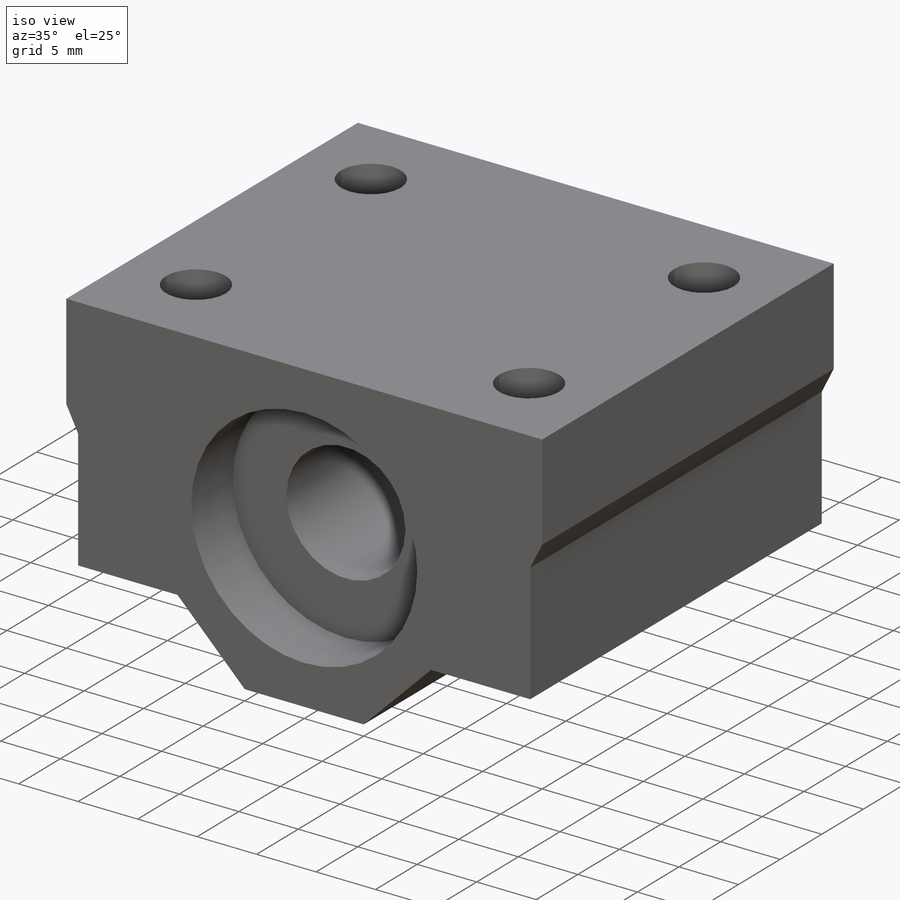
[diagram: iso view]
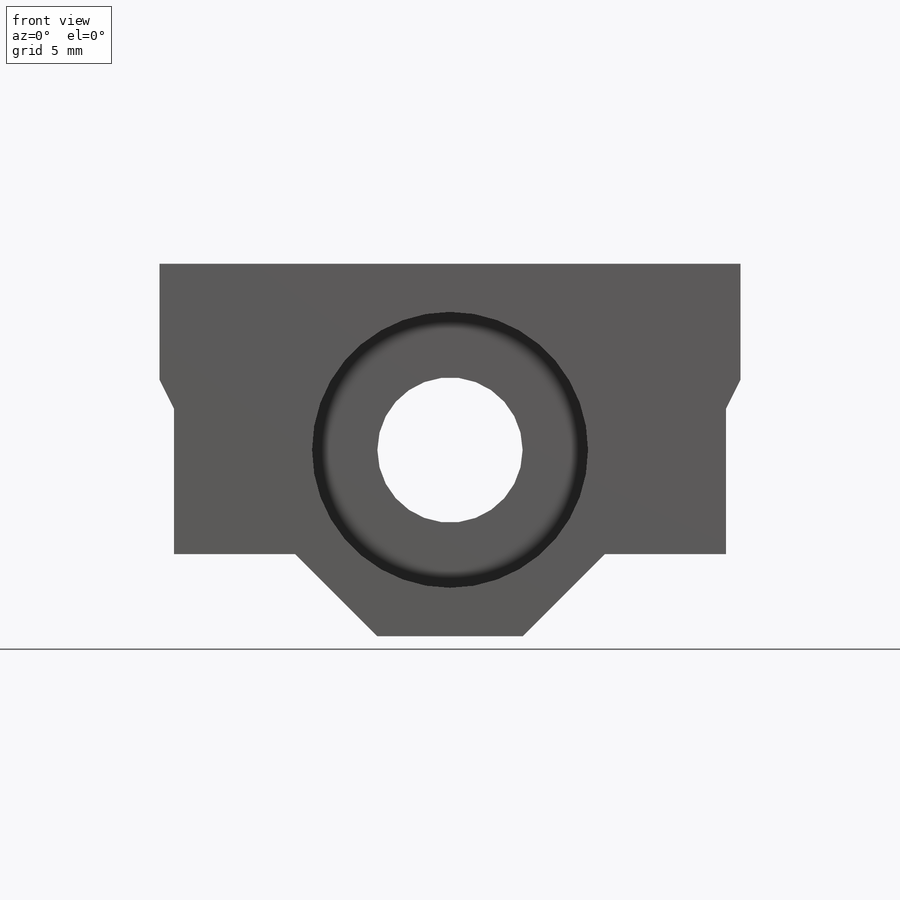
[diagram: front view]
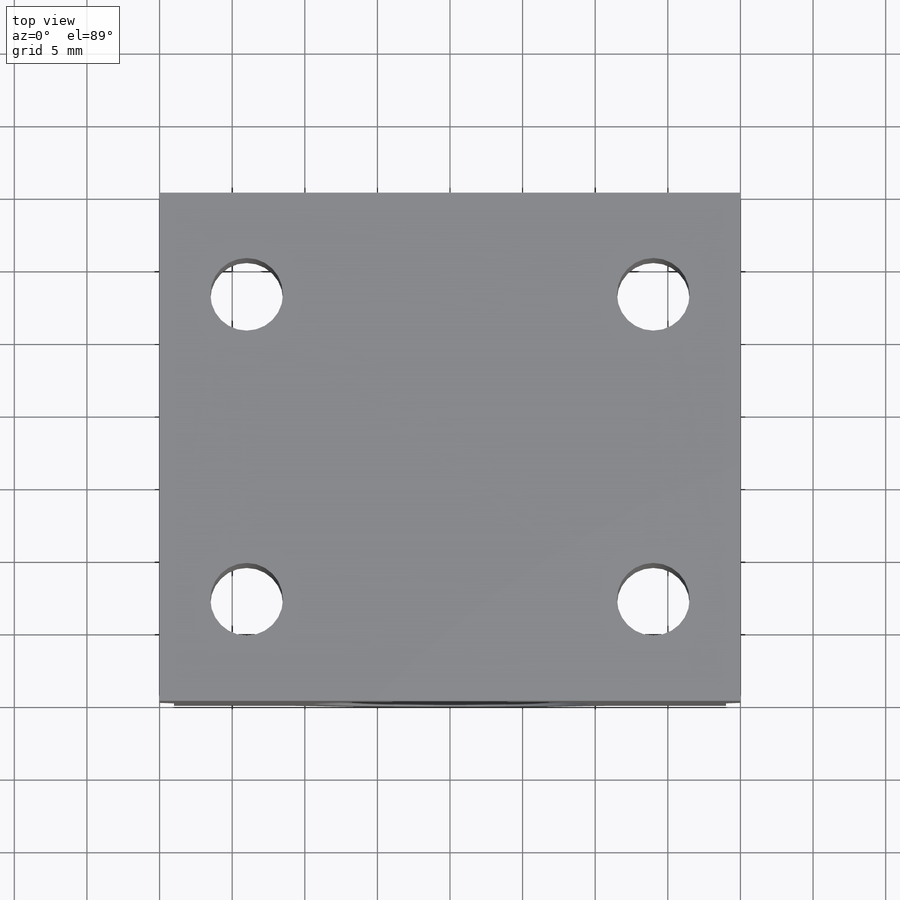
[diagram: top view]
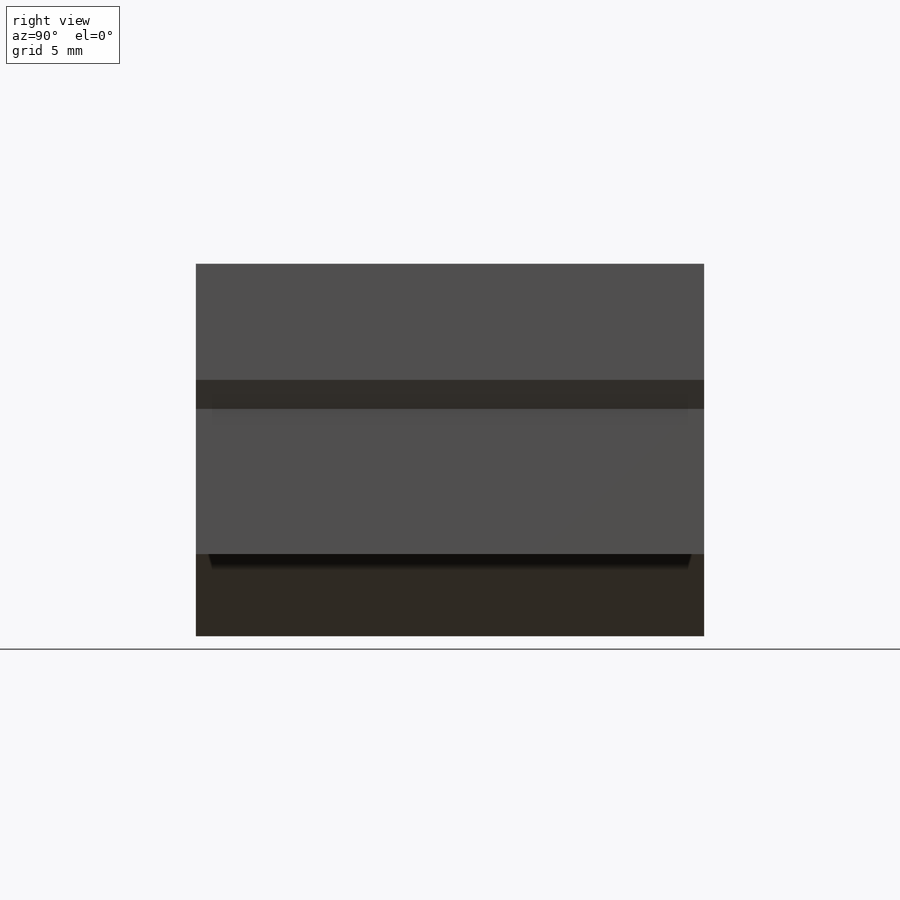
[diagram: right view]
SOLIDWORKS PART (.sldprt)
format: sldprt  version: not decoded by parser v0  size: 256,512 bytes
history: native  units: mm
features: plane x4, sketch x4, cut_extrude x3, material x1, extrude x1, mirror x1 (+9 scaffold rows collapsed)
feature tree (23):
  scaffold x9  (default folders/planes/origin — collapsed)
  material  "Material <not specified>"
  plane  "Plan de face"
  plane  "Plan de dessus"
  plane  "Plan de droite"
  sketch  "Sketch2"  dims[c1.D1=10.0mm c1.D2=8.0mm c1.D3=~52.263264mm c2.D3=45.0deg c2.D4=20.0mm c2.D5=10.0mm c2.D6=8.0mm c2.D7=1.0mm c2.D8=40.0mm]
  extrude  "Boss-Extrude1"  Depth=35mm
  sketch  "Sketch3"  dims[D1=19.0mm]
  cut_extrude  "Cut-Extrude1"  Depth=5mm
  sketch  "Sketch4"  dims[D1=10.0mm]
  cut_extrude  "Cut-Extrude2"  [1 undecoded]
  plane  "Plane1"
  mirror  "Mirror1"
  sketch  "Sketch5"  dims[D1=5.0mm D3=5.0mm D2=28.0mm D4=21.0mm]
  cut_extrude  "Cut-Extrude3"  [1 undecoded]
decode coverage: 6 of 9 modeling features carry decoded parameters
note: ~ marks probable driven/reference dimensions
note: 2 parameter values undecoded
note: suppression state not decoded; provenance and decode notes live in map.json
